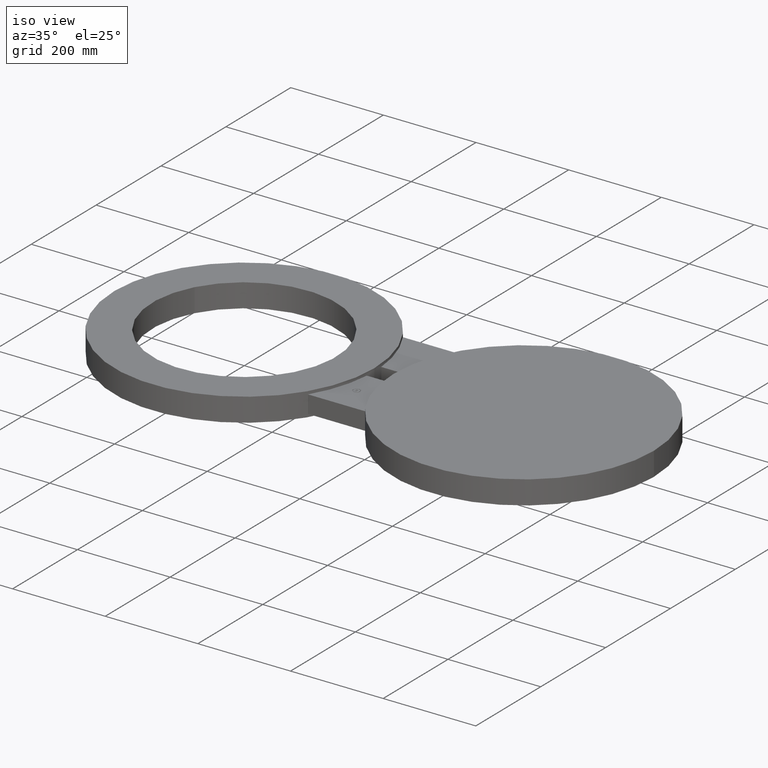
[diagram: clean part render]
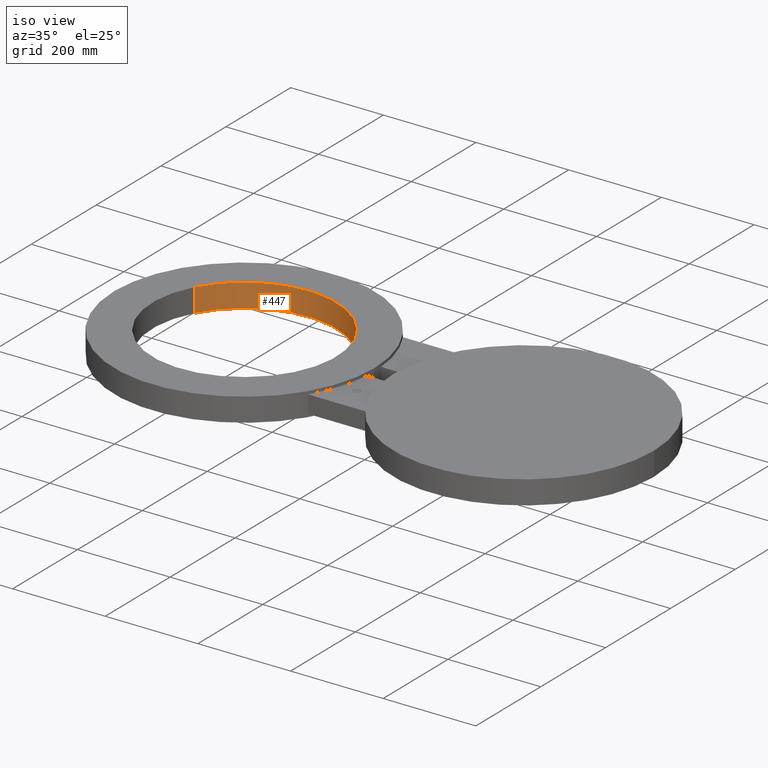
[diagram: same view with one face highlighted and labeled with its STEP entity id]
A machine part, iso view. The second image highlights one B-rep face of the part: STEP entity #447.
In plain terms, the highlighted cylindrical surface (partial cylindrical patch) has radius 198.374 mm, axis along (0, -0, -1).
Its self-contained STEP definition (entity closure, byte-faithful):
#199=AXIS2_PLACEMENT_3D('Circle Axis2P3D',#197,#198,$) ;
#399=AXIS2_PLACEMENT_3D('Cylinder Axis2P3D',#396,#397,#398) ;
#433=AXIS2_PLACEMENT_3D('Circle Axis2P3D',#431,#432,$) ;
#197=CARTESIAN_POINT('Axis2P3D Location',(0.,1.1189649382E-015,-1.)) ;
#201=CARTESIAN_POINT('Vertex',(6.85391980839,-3.74431345651,-1.)) ;
#203=CARTESIAN_POINT('Vertex',(-6.85391980839,3.74431345651,-1.)) ;
#396=CARTESIAN_POINT('Axis2P3D Location',(8.52336574023E-017,-6.99353086378E-017,0.99606299213)) ;
#401=CARTESIAN_POINT('Line Origine',(6.85391980839,-3.74431345651,0.)) ;
#405=CARTESIAN_POINT('Vertex',(6.85391980839,-3.74431345651,1.)) ;
#408=CARTESIAN_POINT('Line Origine',(-6.85391980839,3.74431345651,0.)) ;
#412=CARTESIAN_POINT('Vertex',(-6.85391980839,3.74431345651,1.)) ;
#431=CARTESIAN_POINT('Axis2P3D Location',(0.,1.1189649382E-015,1.)) ;
#198=DIRECTION('Axis2P3D Direction',(0.,0.,0.0393700787402)) ;
#397=DIRECTION('Axis2P3D Direction',(0.,-0.,-0.0393700787402)) ;
#398=DIRECTION('Axis2P3D XDirection',(-0.0345504945626,0.0188750212049,0.)) ;
#402=DIRECTION('Vector Direction',(0.,0.,-0.0393700787402)) ;
#409=DIRECTION('Vector Direction',(0.,0.,-0.0393700787402)) ;
#432=DIRECTION('Axis2P3D Direction',(0.,0.,0.0393700787402)) ;
#403=VECTOR('Line Direction',#402,0.0393700787402) ;
#410=VECTOR('Line Direction',#409,0.0393700787402) ;
#442=ORIENTED_EDGE('',*,*,#414,.F.) ;
#443=ORIENTED_EDGE('',*,*,#205,.F.) ;
#444=ORIENTED_EDGE('',*,*,#407,.T.) ;
#445=ORIENTED_EDGE('',*,*,#435,.T.) ;
#447=ADVANCED_FACE('PartBody',(#446),#400,.F.) ;
#200=CIRCLE('generated circle',#199,7.81000000003) ;
#434=CIRCLE('generated circle',#433,7.81000000003) ;
#400=CYLINDRICAL_SURFACE('generated cylinder',#399,7.81000000003) ;
#205=EDGE_CURVE('',#202,#204,#200,.T.) ;
#407=EDGE_CURVE('',#202,#406,#404,.F.) ;
#414=EDGE_CURVE('',#204,#413,#411,.F.) ;
#435=EDGE_CURVE('',#406,#413,#434,.T.) ;
#441=EDGE_LOOP('',(#442,#443,#444,#445)) ;
#446=FACE_OUTER_BOUND('',#441,.T.) ;
#404=LINE('Line',#401,#403) ;
#411=LINE('Line',#408,#410) ;
#202=VERTEX_POINT('',#201) ;
#204=VERTEX_POINT('',#203) ;
#406=VERTEX_POINT('',#405) ;
#413=VERTEX_POINT('',#412) ;